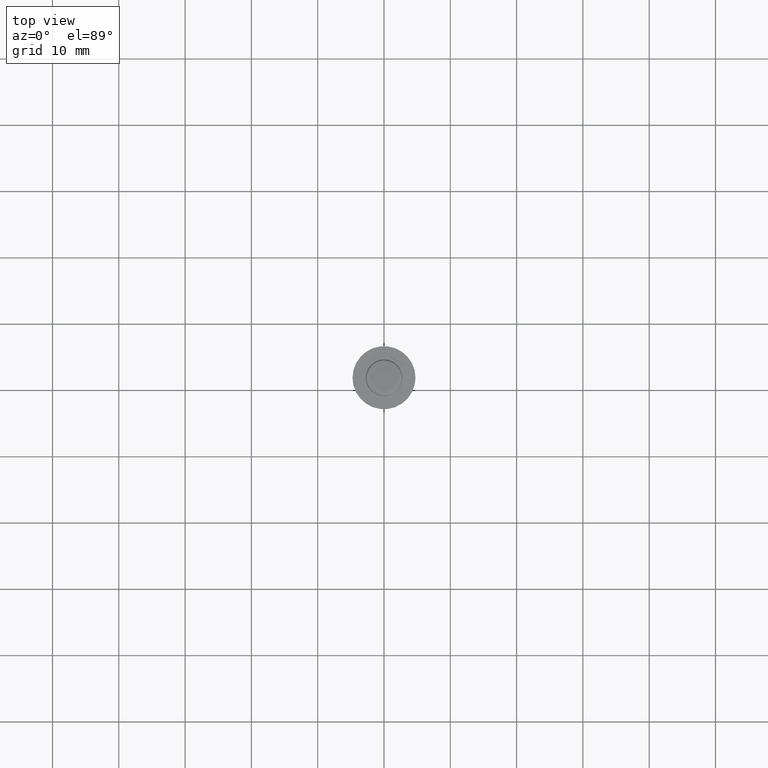
[diagram: clean part render]
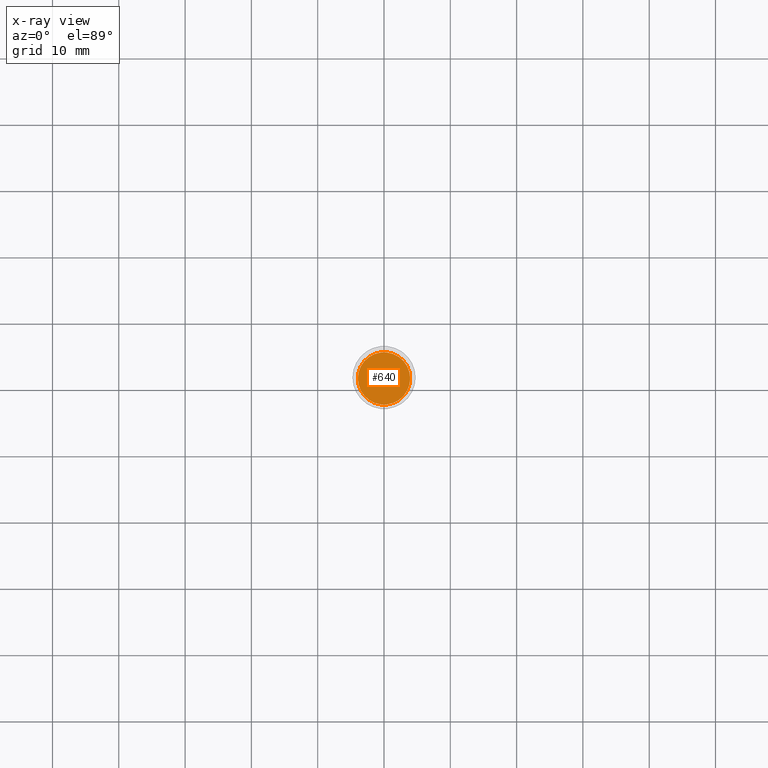
[diagram: x-ray — body ghosted, one internal face saturated and labeled with its STEP entity id]
A machine part, top view, then the same camera in x-ray: the body is ghosted and one INTERNAL B-rep face — a face not visible from any outside direction — is saturated and labeled: STEP entity #640.
In plain terms, the highlighted planar face has unit normal (0, 0, -1).
Its self-contained STEP definition (entity closure, byte-faithful):
#153 = VERTEX_POINT ( 'NONE', #378 ) ;
#205 = DIRECTION ( 'NONE',  ( -0.000000000000000000, -0.000000000000000000, 1.000000000000000000 ) ) ;
#217 = EDGE_LOOP ( 'NONE', ( #1205, #1563 ) ) ;
#230 = EDGE_CURVE ( 'NONE', #153, #327, #460, .T. ) ;
#247 = DIRECTION ( 'NONE',  ( -1.000000000000000000, 0.000000000000000000, 0.000000000000000000 ) ) ;
#327 = VERTEX_POINT ( 'NONE', #2145 ) ;
#378 = CARTESIAN_POINT ( 'NONE',  ( 3.950000000000001066, 5.021051876504150343E-16, -7.500000000000000000 ) ) ;
#460 = CIRCLE ( 'NONE', #1828, 3.950000000000001066 ) ;
#604 = DIRECTION ( 'NONE',  ( -1.000000000000000000, 0.000000000000000000, 0.000000000000000000 ) ) ;
#640 = ADVANCED_FACE ( 'NONE', ( #1031 ), #2310, .F. ) ;
#647 = DIRECTION ( 'NONE',  ( 0.000000000000000000, 0.000000000000000000, -1.000000000000000000 ) ) ;
#659 = AXIS2_PLACEMENT_3D ( 'NONE', #1708, #205, #604 ) ;
#812 = DIRECTION ( 'NONE',  ( -0.000000000000000000, -0.000000000000000000, 1.000000000000000000 ) ) ;
#858 = AXIS2_PLACEMENT_3D ( 'NONE', #2328, #647, #2139 ) ;
#998 = EDGE_CURVE ( 'NONE', #327, #153, #1877, .T. ) ;
#1031 = FACE_OUTER_BOUND ( 'NONE', #217, .T. ) ;
#1182 = CARTESIAN_POINT ( 'NONE',  ( 0.000000000000000000, 0.000000000000000000, -7.500000000000000000 ) ) ;
#1205 = ORIENTED_EDGE ( 'NONE', *, *, #998, .T. ) ;
#1563 = ORIENTED_EDGE ( 'NONE', *, *, #230, .T. ) ;
#1708 = CARTESIAN_POINT ( 'NONE',  ( 0.000000000000000000, 0.000000000000000000, -7.500000000000000000 ) ) ;
#1828 = AXIS2_PLACEMENT_3D ( 'NONE', #1182, #812, #247 ) ;
#1877 = CIRCLE ( 'NONE', #659, 3.950000000000001066 ) ;
#2139 = DIRECTION ( 'NONE',  ( -1.000000000000000000, 0.000000000000000000, -0.000000000000000000 ) ) ;
#2145 = CARTESIAN_POINT ( 'NONE',  ( -3.950000000000001066, 0.000000000000000000, -7.500000000000000000 ) ) ;
#2310 = PLANE ( 'NONE',  #858 ) ;
#2328 = CARTESIAN_POINT ( 'NONE',  ( 0.000000000000000000, 0.000000000000000000, -7.500000000000000000 ) ) ;